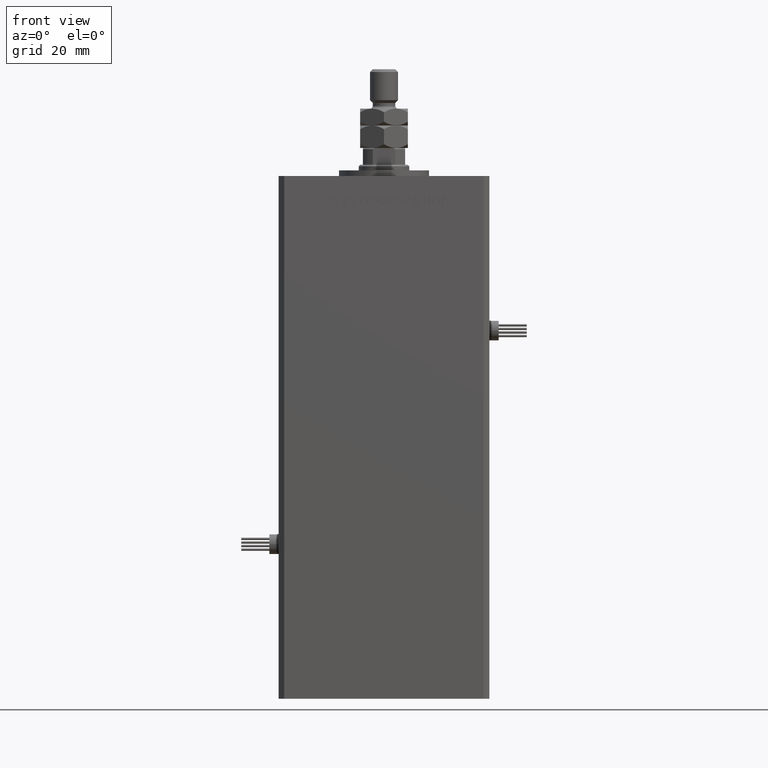
[diagram: clean part render]
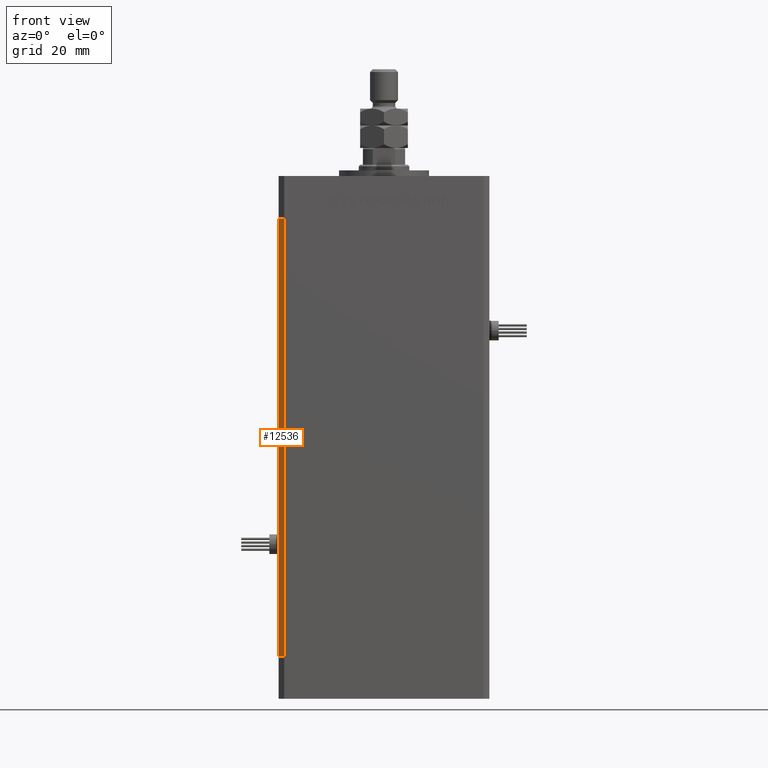
[diagram: same view with one face highlighted and labeled with its STEP entity id]
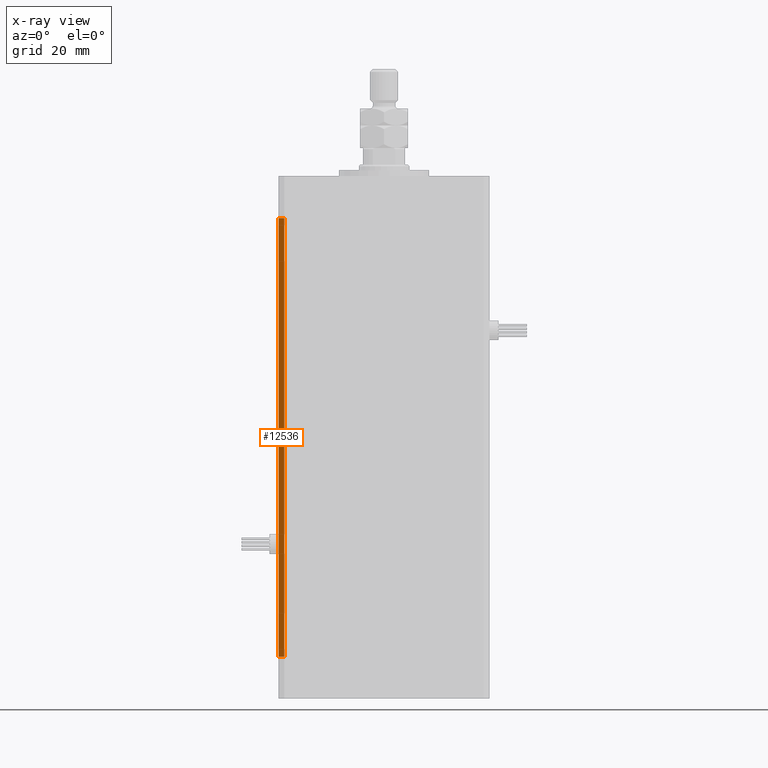
[diagram: x-ray of the same camera — body ghosted, the highlighted face saturated]
A machine part, front view. The second image highlights one B-rep face of the part: STEP entity #12536.
The next image is the same camera in x-ray: the body ghosted, the highlighted face saturated — about 0% of this face is hidden behind the body in this view.
In plain terms, the highlighted planar face has unit normal (0.7071, 0.7071, 0).
Its self-contained STEP definition (entity closure, byte-faithful):
#430 = VECTOR ( 'NONE', #49696, 1000.000000000000114 ) ;
#557 = ORIENTED_EDGE ( 'NONE', *, *, #52820, .F. ) ;
#3055 = FACE_OUTER_BOUND ( 'NONE', #28547, .T. ) ;
#5373 = CARTESIAN_POINT ( 'NONE',  ( -37.49999999999999289, -30.50000000000000000, 0.000000000000000000 ) ) ;
#6963 = DIRECTION ( 'NONE',  ( -0.000000000000000000, -0.000000000000000000, -1.000000000000000000 ) ) ;
#7580 = EDGE_CURVE ( 'NONE', #42515, #17594, #8989, .T. ) ;
#8188 = CARTESIAN_POINT ( 'NONE',  ( -37.49999999999999289, -30.50000000000000000, 156.0000000000000000 ) ) ;
#8989 = LINE ( 'NONE', #35108, #430 ) ;
#11336 = CARTESIAN_POINT ( 'NONE',  ( -35.49999999999999289, -32.50000000000000000, 156.0000000000000000 ) ) ;
#11563 = CARTESIAN_POINT ( 'NONE',  ( -37.49999999999999289, -30.50000000000000000, 156.0000000000000000 ) ) ;
#12536 = ADVANCED_FACE ( 'NONE', ( #3055 ), #38037, .F. ) ;
#13511 = VERTEX_POINT ( 'NONE', #37204 ) ;
#16784 = DIRECTION ( 'NONE',  ( -0.7071067811865474617, 0.7071067811865474617, 0.000000000000000000 ) ) ;
#17594 = VERTEX_POINT ( 'NONE', #46197 ) ;
#19960 = LINE ( 'NONE', #37474, #44503 ) ;
#23025 = LINE ( 'NONE', #23303, #43819 ) ;
#23303 = CARTESIAN_POINT ( 'NONE',  ( -35.49999999999999289, -32.50000000000000000, 156.0000000000000000 ) ) ;
#24470 = LINE ( 'NONE', #11563, #37805 ) ;
#25417 = DIRECTION ( 'NONE',  ( 0.7071067811865475727, 0.7071067811865475727, -0.000000000000000000 ) ) ;
#25888 = EDGE_CURVE ( 'NONE', #47082, #17594, #23025, .T. ) ;
#28547 = EDGE_LOOP ( 'NONE', ( #51276, #31817, #557, #39831 ) ) ;
#31817 = ORIENTED_EDGE ( 'NONE', *, *, #25888, .F. ) ;
#35108 = CARTESIAN_POINT ( 'NONE',  ( -37.49999999999999289, -30.50000000000000000, 0.000000000000000000 ) ) ;
#37204 = CARTESIAN_POINT ( 'NONE',  ( -37.49999999999999289, -30.50000000000000000, 156.0000000000000000 ) ) ;
#37474 = CARTESIAN_POINT ( 'NONE',  ( -37.49999999999999289, -30.50000000000000000, 156.0000000000000000 ) ) ;
#37805 = VECTOR ( 'NONE', #6963, 1000.000000000000000 ) ;
#38037 = PLANE ( 'NONE',  #56541 ) ;
#39831 = ORIENTED_EDGE ( 'NONE', *, *, #42090, .T. ) ;
#42090 = EDGE_CURVE ( 'NONE', #13511, #42515, #24470, .T. ) ;
#42515 = VERTEX_POINT ( 'NONE', #5373 ) ;
#43819 = VECTOR ( 'NONE', #50282, 1000.000000000000000 ) ;
#44503 = VECTOR ( 'NONE', #54982, 1000.000000000000114 ) ;
#46197 = CARTESIAN_POINT ( 'NONE',  ( -35.49999999999999289, -32.50000000000000000, 0.000000000000000000 ) ) ;
#47082 = VERTEX_POINT ( 'NONE', #11336 ) ;
#49696 = DIRECTION ( 'NONE',  ( 0.7071067811865474617, -0.7071067811865474617, 0.000000000000000000 ) ) ;
#50282 = DIRECTION ( 'NONE',  ( -0.000000000000000000, -0.000000000000000000, -1.000000000000000000 ) ) ;
#51276 = ORIENTED_EDGE ( 'NONE', *, *, #7580, .T. ) ;
#52820 = EDGE_CURVE ( 'NONE', #13511, #47082, #19960, .T. ) ;
#54982 = DIRECTION ( 'NONE',  ( 0.7071067811865474617, -0.7071067811865474617, 0.000000000000000000 ) ) ;
#56541 = AXIS2_PLACEMENT_3D ( 'NONE', #8188, #25417, #16784 ) ;